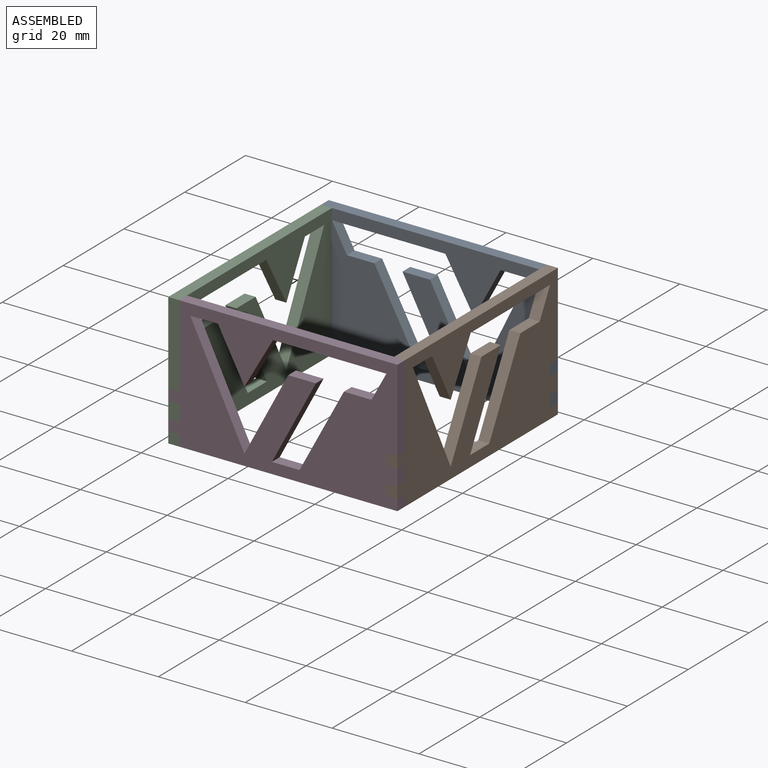
[diagram: assembled view]
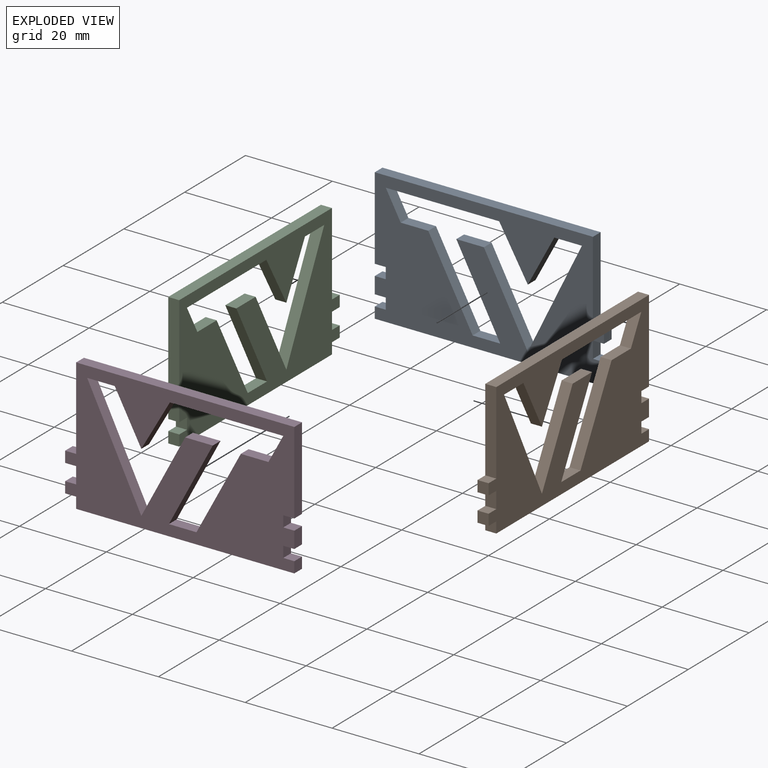
[diagram: exploded view]
GUIDED TOUR — MATED ASSEMBLY (Onshape document 573b88a015af8e62a85d6f1a, AutoMate assembly 573b88a015af8e62a85d6f1a_e017623ce4d224ae7427482c_e7070c4eb9ab015452ffe29b_default)

This assembly has 4 components, labeled P0..P3 below (a component is one placed occurrence of a part; the same part can appear more than once), held together by 3 mates. A mate is a constraint between two components; its type names the relative motion it leaves free:
  PLANAR — leaves sliding in the plane through the listed point (normal = the listed direction) and rotation about that normal free.
Axis/direction vectors are unit vectors and 'through' points are millimeter coordinates, both in the assembly's world frame.

MATES
  1. PLANAR "Planar 2": P0 <-> P1, direction (1.000, 0.000, 0.000) through (-23.96, 34.49, 18.86) mm
  2. PLANAR "Planar 1": P3 <-> P1, direction (0.000, -1.000, 0.000) through (-26.50, -15.75, 18.86) mm
  3. PLANAR "Planar 3": P2 <-> P0, direction (0.000, 1.000, 0.000) through (-74.20, 37.03, 18.86) mm

ASSEMBLY ORDER
  1. P2 — the base component [order verified]
  2. P0 [order verified]
  3. P1 [order verified]
  4. P3 [order verified]
Order-tag legend:
  [order verified] — this step's position reverses a verified removal order: the component was checked to insert without passing through the ones already placed.

Of the 4 components, 4 carry the full construction recipe — the FeatureScript program that regenerates the part's solid from scratch; the rest are supplied as boundary geometry only.
Each toured component is shown spotlighted twice — in the assembled view, then in the exploded view, where a leader line traces a displaced component back to its assembled socket (saturated green if recipe-attached, orange if geometry-only; every other component desaturated gray) — followed by its recipe or geometry summary and the mates that hold it.
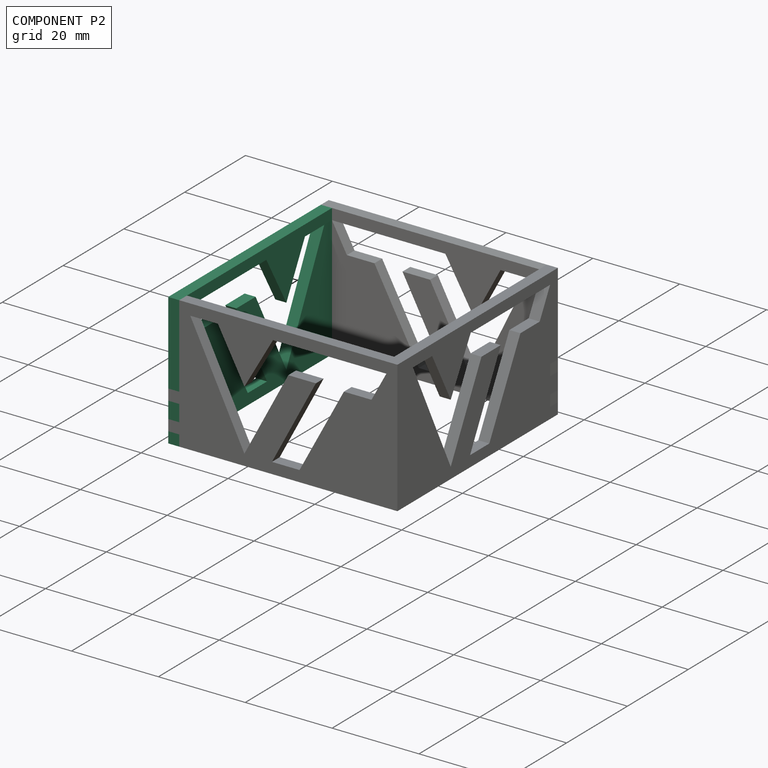
[diagram: component P2 — assembled]
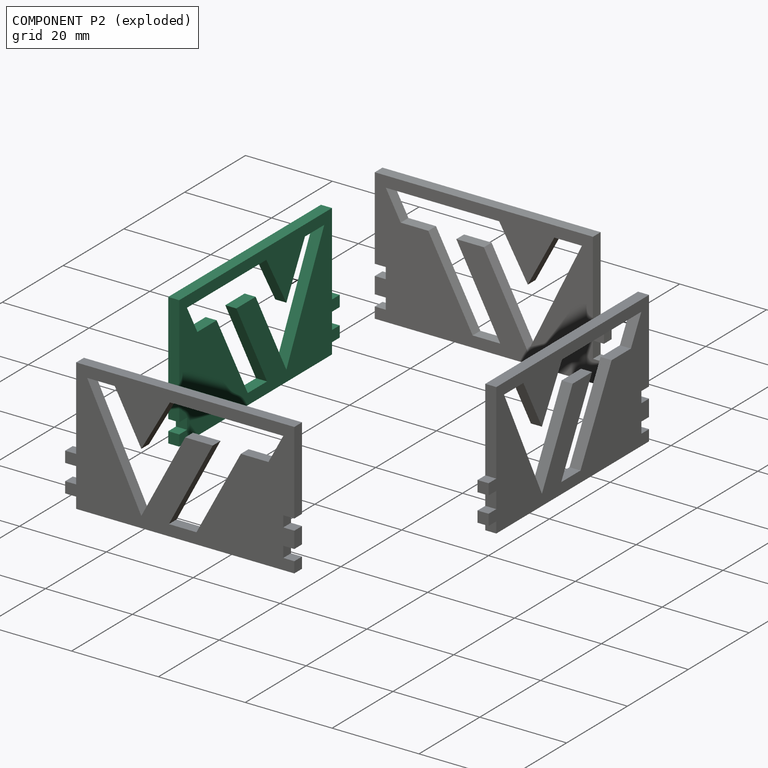
[diagram: component P2 — exploded]
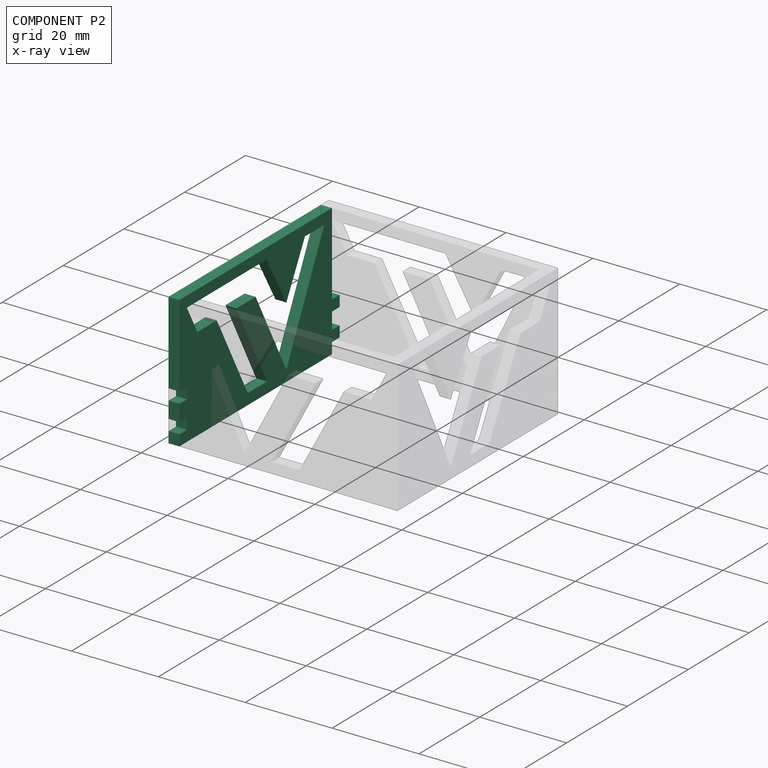
[diagram: component P2 — x-ray view]
COMPONENT P2 — same part as P0 (CADFS 00703544); its construction recipe is shown at P0.
Held by: PLANAR mate "Planar 3" to P0.
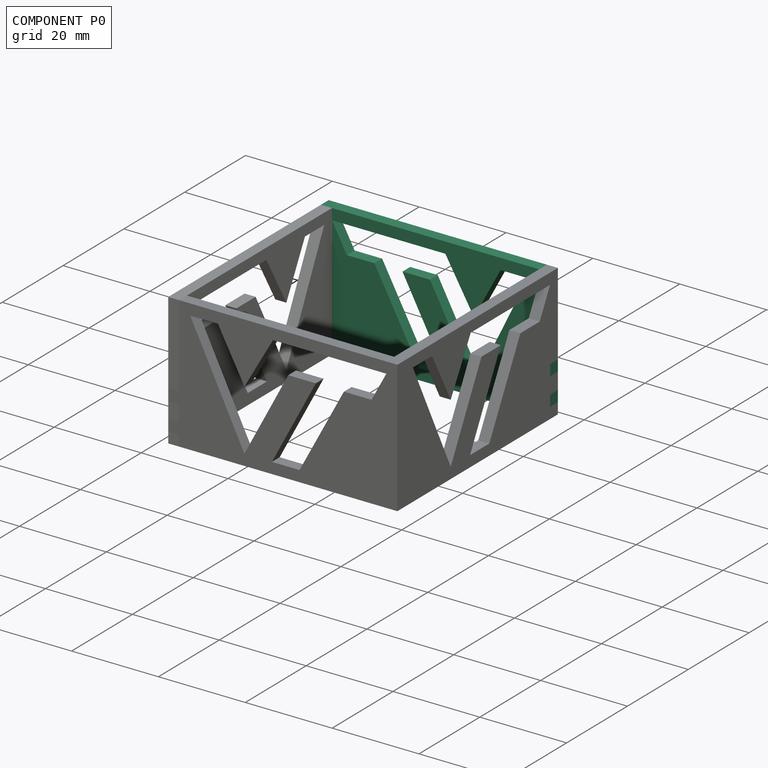
[diagram: component P0 — assembled]
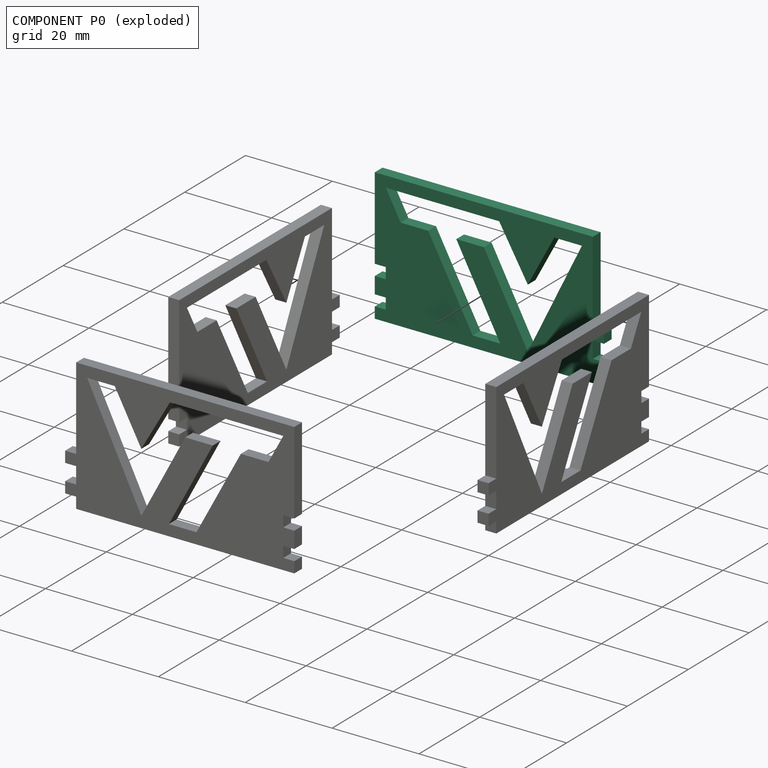
[diagram: component P0 — exploded]
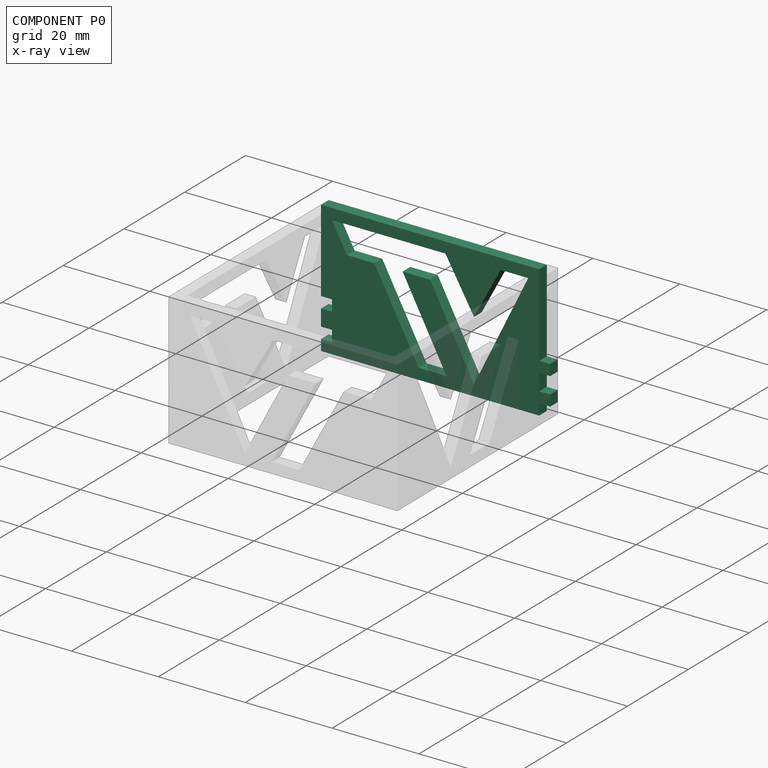
[diagram: component P0 — x-ray view]
COMPONENT P0 — recipe-attached (CADFS 00703544, mesh-verified: the recipe's output STEP matches this component's geometry to below the mesh-comparison resolution (tessellation chordal tolerance ~0.0915 mm)).
Held by: PLANAR mate "Planar 2" to P1; PLANAR mate "Planar 3" to P2.
Construction recipe (FeatureScript — the CAD program that rebuilds this solid; sketch coordinates are in the units given by the * unit suffixes, e.g. mm):

FeatureScript 1511;
import(path : "onshape/std/geometry.fs", version : "1511.0");
import(path : "onshape/std/common.fs", version : "1511.0");
const mm = millimeter;
const VERTEX = EntityType.VERTEX;
const EDGE = EntityType.EDGE;
const FACE = EntityType.FACE;
const BODY = EntityType.BODY;
function v(x, y){return vector(x, y);}
function OD(order){return orderDisambiguation(order);}
function OSD(set){return originalSetDisambiguation(set);}
function TD(topology){return topologyDisambiguation(topology);}
function TDD(query){return trueDependencyDisambiguation(query);}
function sQuery(a, b, c) {return sketchEntityQuery(a, b, c);}

annotation { "Feature Type Name" : "Feature", "Feature Type Description" : "" }
export const myFeature = defineFeature(function(context is Context, id is Id, definition is map)
    precondition{}
    {
        {
            var Q0;
            Q0=qCreatedBy(makeId("Front.planeOp"),FACE);
            var sketch = newSketch(context, id + "F0", { "sketchPlane" : qUnion([Q0])});
            skLineSegment(sketch, "E0", {"start": v(-15.3, 25.4) * mm, "end": v(-2.83, 0) * mm});
            skLineSegment(sketch, "E1", {"start": v(-2.83, 0) * mm, "end": v(7.28, 19.05) * mm});
            skLineSegment(sketch, "E2", {"start": v(7.28, 19.05) * mm, "end": v(13.63, 19.05) * mm});
            skLineSegment(sketch, "E3", {"start": v(13.63, 19.05) * mm, "end": v(3.52, 0) * mm});
            skLineSegment(sketch, "E4", {"start": v(3.52, 0) * mm, "end": v(9.87, 0) * mm});
            skLineSegment(sketch, "E5", {"start": v(9.87, 0) * mm, "end": v(20.09, 19.05) * mm});
            skLineSegment(sketch, "E6", {"start": v(20.09, 19.05) * mm, "end": v(26.44, 19.05) * mm});
            skLineSegment(sketch, "E7", {"start": v(26.44, 19.05) * mm, "end": v(29.87, 25.4) * mm});
            skLineSegment(sketch, "E8", {"start": v(29.87, 25.4) * mm, "end": v(3.76, 25.4) * mm});
            skLineSegment(sketch, "E9", {"start": v(3.76, 25.4) * mm, "end": v(-2.83, 13.97) * mm});
            skLineSegment(sketch, "E10", {"start": v(-2.83, 13.97) * mm, "end": v(-8.94, 25.4) * mm});
            skLineSegment(sketch, "E11", {"start": v(-8.94, 25.4) * mm, "end": v(-15.3, 25.4) * mm});
            skSolve(sketch);
        }
        {
            var Q0;
            Q0=qCreatedBy(makeId("Front.planeOp"),FACE);
            var sketch = newSketch(context, id + "F1", { "sketchPlane" : qUnion([Q0])});
            skLineSegment(sketch, "E12.bottom", {"start": v(-17.83, 27.94) * mm, "end": v(32.4, 27.94) * mm});
            skLineSegment(sketch, "E12.top", {"start": v(-17.83, -2.54) * mm, "end": v(32.4, -2.54) * mm});
            skLineSegment(sketch, "E12.left", {"start": v(-17.83, 27.94) * mm, "end": v(-17.83, -2.54) * mm});
            skLineSegment(sketch, "E12.right", {"start": v(32.4, 27.94) * mm, "end": v(32.4, -2.54) * mm});
            skSolve(sketch);
        }
        {
            var Q0;
            Q0=makeQuery(id+"F1.imprint","IMPRINT",FACE,{"disambiguationData":[TD([[makeQuery(id+"F1.imprint","IMPRINT",EDGE,{"derivedFrom":sQuery(id+"F1.wireOp",EDGE,"E12.bottom")}),-1.0]])]});
            extrude(context, id + "F2", {"entities" : qUnion([Q0]), "oppositeDirection" : true, "depth" : 2.54 * mm, "offsetDistance" : 25.4 * mm});
        }
        {
            var Q0;
            Q0 = qSketchRegion(id + "F0", true);
            extrude(context, id + "F3", {"entities" : qUnion([Q0]), "operationType" : NewBodyOperationType.REMOVE, "endBound" : BoundingType.UP_TO_NEXT, "oppositeDirection" : true, "depth" : 25.4 * mm, "offsetDistance" : 25.4 * mm});
        }
        {
            var Q0;
            Q0=makeQuery(id+"F1.imprint","IMPRINT",FACE,{"disambiguationData":[TD([[makeQuery(id+"F1.imprint","IMPRINT",EDGE,{"derivedFrom":sQuery(id+"F1.wireOp",EDGE,"E12.bottom")}),-1.0]])]});
            var sketch = newSketch(context, id + "F4", { "sketchPlane" : qUnion([Q0])});
            skLineSegment(sketch, "E13.0.0", {"start": v(-17.83, 27.94) * mm, "end": v(-17.83, -2.54) * mm});
            skLineSegment(sketch, "E13.0.1", {"start": v(-17.83, -2.54) * mm, "end": v(32.4, -2.54) * mm});
            skLineSegment(sketch, "E13.0.2", {"start": v(32.4, -2.54) * mm, "end": v(32.4, 27.94) * mm});
            skLineSegment(sketch, "E13.0.3", {"start": v(32.4, 27.94) * mm, "end": v(-17.83, 27.94) * mm});
            skLineSegment(sketch, "E14.bottom", {"start": v(-17.83, -2.54) * mm, "end": v(-15.3, -2.54) * mm});
            skLineSegment(sketch, "E14.top", {"start": v(-17.83, 11.43) * mm, "end": v(-15.3, 11.43) * mm});
            skLineSegment(sketch, "E14.left", {"start": v(-17.83, -2.54) * mm, "end": v(-17.83, 11.43) * mm});
            skLineSegment(sketch, "E14.right", {"start": v(-15.3, -2.54) * mm, "end": v(-15.3, 11.43) * mm});
            skLineSegment(sketch, "E15.bottom", {"start": v(32.4, -2.54) * mm, "end": v(29.87, -2.54) * mm});
            skLineSegment(sketch, "E15.top", {"start": v(32.4, 12.4) * mm, "end": v(29.87, 12.4) * mm});
            skLineSegment(sketch, "E15.left", {"start": v(32.4, -2.54) * mm, "end": v(32.4, 12.4) * mm});
            skLineSegment(sketch, "E15.right", {"start": v(29.87, -2.54) * mm, "end": v(29.87, 12.4) * mm});
            skLineSegment(sketch, "E16.bottom", {"start": v(-17.83, 6.35) * mm, "end": v(-15.3, 6.35) * mm});
            skLineSegment(sketch, "E16.top", {"start": v(-17.83, 8.9) * mm, "end": v(-15.3, 8.9) * mm});
            skLineSegment(sketch, "E16.left", {"start": v(-17.83, 6.35) * mm, "end": v(-17.83, 8.9) * mm});
            skLineSegment(sketch, "E16.right", {"start": v(-15.3, 6.35) * mm, "end": v(-15.3, 8.9) * mm});
            skLineSegment(sketch, "E17.bottom", {"start": v(-17.83, 0) * mm, "end": v(-15.3, 0) * mm});
            skLineSegment(sketch, "E17.top", {"start": v(-17.83, 2.54) * mm, "end": v(-15.3, 2.54) * mm});
            skLineSegment(sketch, "E17.left", {"start": v(-17.83, 0) * mm, "end": v(-17.83, 2.54) * mm});
            skLineSegment(sketch, "E17.right", {"start": v(-15.3, 0) * mm, "end": v(-15.3, 2.54) * mm});
            skLineSegment(sketch, "E18.bottom", {"start": v(29.87, 6.35) * mm, "end": v(32.4, 6.35) * mm});
            skLineSegment(sketch, "E18.top", {"start": v(29.87, 8.9) * mm, "end": v(32.4, 8.9) * mm});
            skLineSegment(sketch, "E18.left", {"start": v(29.87, 6.35) * mm, "end": v(29.87, 8.9) * mm});
            skLineSegment(sketch, "E18.right", {"start": v(32.4, 6.35) * mm, "end": v(32.4, 8.9) * mm});
            skLineSegment(sketch, "E19.bottom", {"start": v(29.87, 0) * mm, "end": v(32.4, 0) * mm});
            skLineSegment(sketch, "E19.top", {"start": v(29.87, 2.54) * mm, "end": v(32.4, 2.54) * mm});
            skLineSegment(sketch, "E19.left", {"start": v(29.87, 0) * mm, "end": v(29.87, 2.54) * mm});
            skLineSegment(sketch, "E19.right", {"start": v(32.4, 0) * mm, "end": v(32.4, 2.54) * mm});
            skSolve(sketch);
        }
        {
            var Q0;
            Q0=makeQuery(id+"F4.imprint","IMPRINT",FACE,{"disambiguationData":[TD([[makeQuery(id+"F4.imprint","IMPRINT",EDGE,{"derivedFrom":sQuery(id+"F4.wireOp",EDGE,"E18.bottom")}),1.0]])]});
            var Q1;
            Q1=makeQuery(id+"F4.imprint","IMPRINT",FACE,{"disambiguationData":[TD([[makeQuery(id+"F4.imprint","IMPRINT",EDGE,{"derivedFrom":sQuery(id+"F4.wireOp",EDGE,"E19.bottom")}),1.0]])]});
            extrude(context, id + "F5", {"entities" : qUnion([Q0, Q1]), "operationType" : NewBodyOperationType.REMOVE, "endBound" : BoundingType.UP_TO_NEXT, "oppositeDirection" : true, "depth" : 25.4 * mm, "offsetDistance" : 25.4 * mm});
        }
        {
            var Q0;
            Q0=makeQuery(id+"F2.opExtrude","SWEPT_FACE",FACE,{"disambiguationData":[OSD([sQuery(id+"F1.wireOp",EDGE,"E12.left")])]});
            var sketch = newSketch(context, id + "F6", { "sketchPlane" : qUnion([Q0])});
            skLineSegment(sketch, "E20.bottom", {"start": v(-2.54, -2.54) * mm, "end": v(0, -2.54) * mm});
            skLineSegment(sketch, "E20.top", {"start": v(-2.54, 11.43) * mm, "end": v(0, 11.43) * mm});
            skLineSegment(sketch, "E20.left", {"start": v(-2.54, -2.54) * mm, "end": v(-2.54, 11.43) * mm});
            skLineSegment(sketch, "E20.right", {"start": v(0, -2.54) * mm, "end": v(0, 11.43) * mm});
            skLineSegment(sketch, "E21.bottom", {"start": v(-2.54, 8.9) * mm, "end": v(0, 8.9) * mm});
            skLineSegment(sketch, "E21.top", {"start": v(-2.54, 6.35) * mm, "end": v(0, 6.35) * mm});
            skLineSegment(sketch, "E21.left", {"start": v(-2.54, 8.9) * mm, "end": v(-2.54, 6.35) * mm});
            skLineSegment(sketch, "E21.right", {"start": v(0, 8.9) * mm, "end": v(0, 6.35) * mm});
            skLineSegment(sketch, "E22.bottom", {"start": v(-2.54, 2.54) * mm, "end": v(0, 2.54) * mm});
            skLineSegment(sketch, "E22.top", {"start": v(-2.54, 0) * mm, "end": v(0, 0) * mm});
            skLineSegment(sketch, "E22.left", {"start": v(-2.54, 2.54) * mm, "end": v(-2.54, 0) * mm});
            skLineSegment(sketch, "E22.right", {"start": v(0, 2.54) * mm, "end": v(0, 0) * mm});
            skSolve(sketch);
        }
        {
            var Q0;
            Q0=makeQuery(id+"F6.imprint","IMPRINT",FACE,{"disambiguationData":[TD([[makeQuery(id+"F6.imprint","IMPRINT",EDGE,{"derivedFrom":sQuery(id+"F6.wireOp",EDGE,"E21.bottom")}),-1.0]])]});
            var Q1;
            Q1=makeQuery(id+"F6.imprint","IMPRINT",FACE,{"disambiguationData":[TD([[makeQuery(id+"F6.imprint","IMPRINT",EDGE,{"derivedFrom":sQuery(id+"F6.wireOp",EDGE,"E22.bottom")}),-1.0]])]});
            extrude(context, id + "F7", {"entities" : qUnion([Q0, Q1]), "operationType" : NewBodyOperationType.ADD, "depth" : 2.54 * mm, "offsetDistance" : 25.4 * mm});
        }
    });
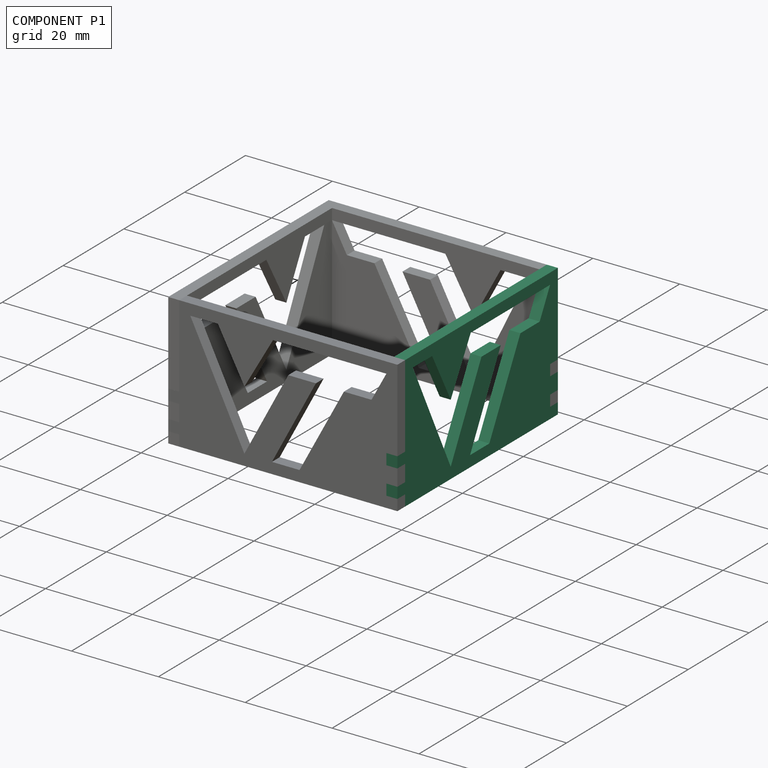
[diagram: component P1 — assembled]
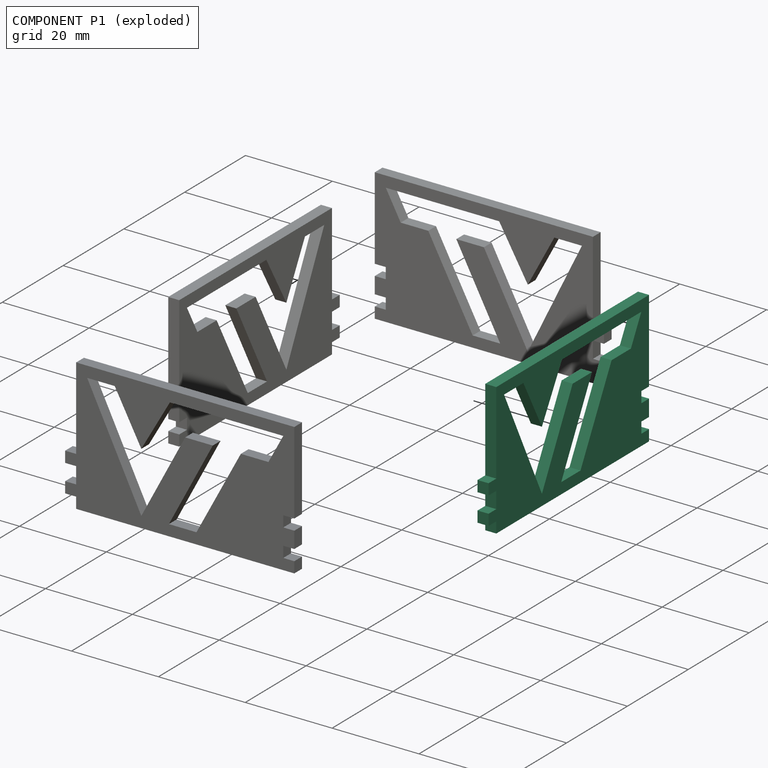
[diagram: component P1 — exploded]
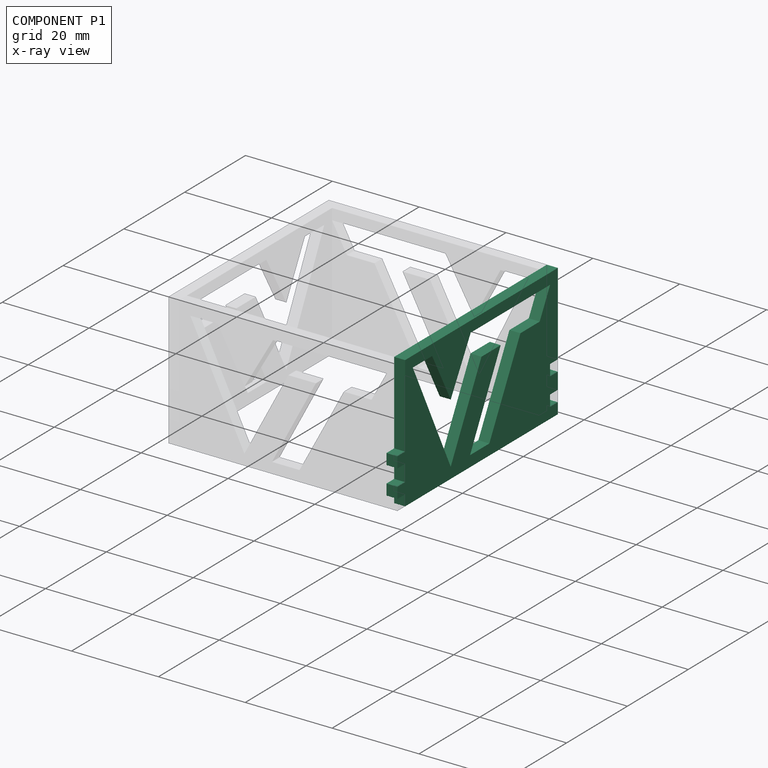
[diagram: component P1 — x-ray view]
COMPONENT P1 — same part as P0 (CADFS 00703544); its construction recipe is shown at P0.
Held by: PLANAR mate "Planar 2" to P0; PLANAR mate "Planar 1" to P3.
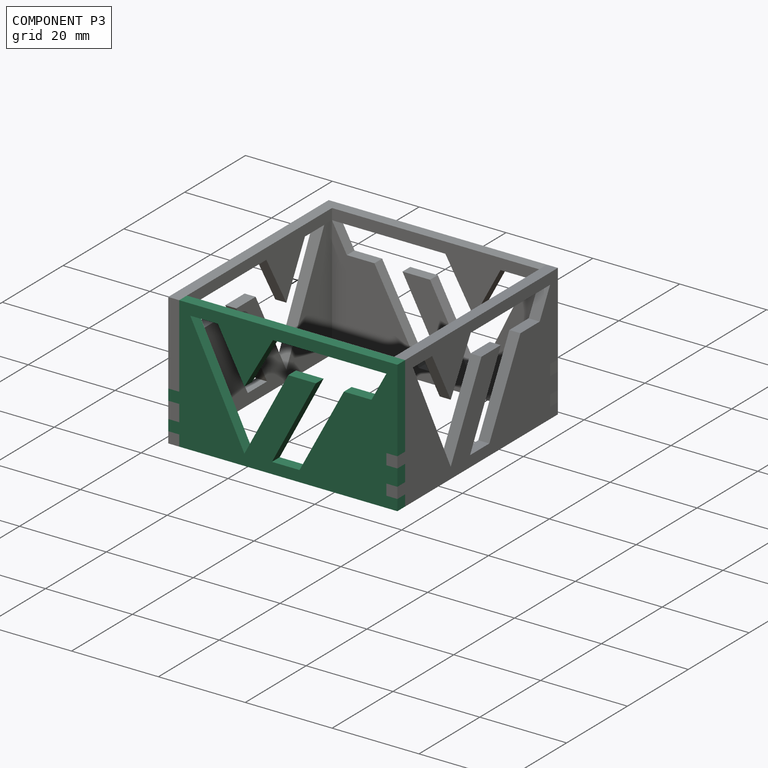
[diagram: component P3 — assembled]
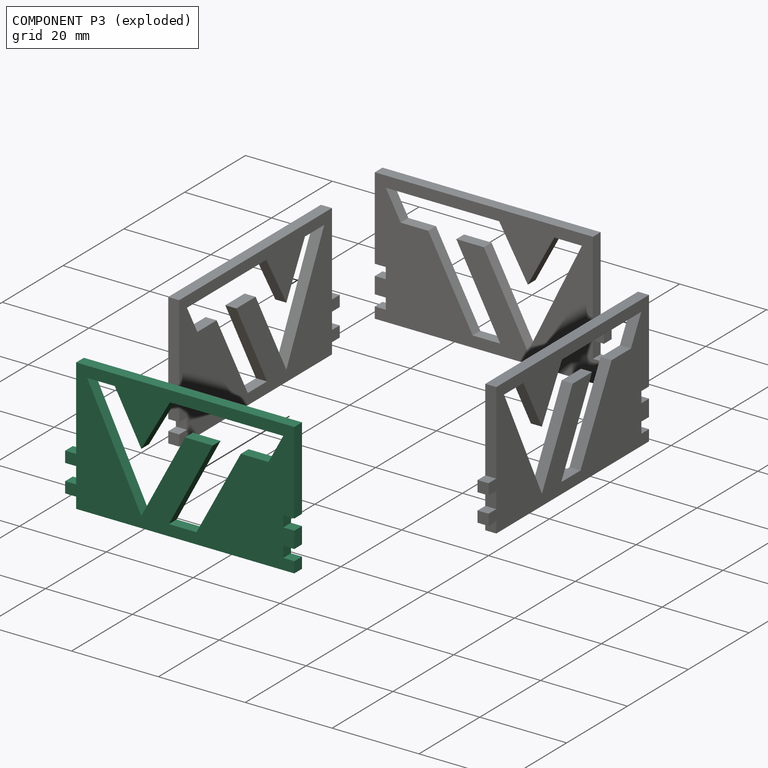
[diagram: component P3 — exploded]
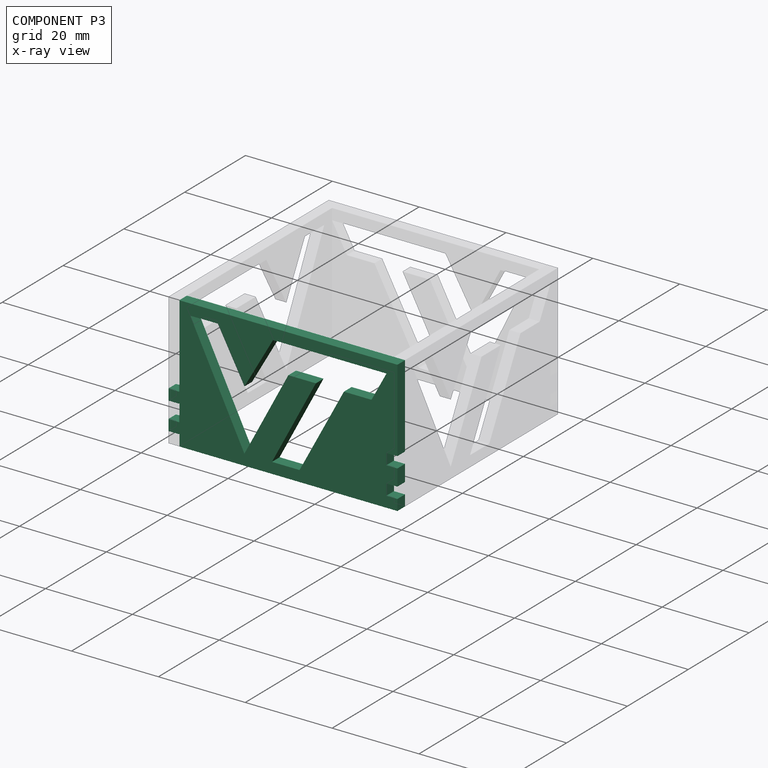
[diagram: component P3 — x-ray view]
COMPONENT P3 — same part as P0 (CADFS 00703544); its construction recipe is shown at P0.
Held by: PLANAR mate "Planar 1" to P1.
PROVENANCE & LICENSES
Assembly (occurrences, transforms, mates, per-part STEP geometry): AutoMate dataset, Zenodo record 7776208, CC0.
Construction recipes: CADFS (HuggingFace VladPyatov/CADFS, CC-BY-4.0, layered over the ABC dataset), FeatureScript reconstruction programs keyed by ABC model id.
Join: ABC meta listings map ABC model id -> Onshape documentId; within a shared document, parts are matched by geometric signature (bounding-box dims + volume at 0.1% relative tolerance, exact B-rep face/solid counts).
Verification: 4 of this assembly's 4 components carry a recipe attachment, and every attachment is mesh-verified: the CADFS STEP and the AutoMate member STEP were compared as meshes in their shared local frame (symmetric sampled-point-to-mesh distance); worst across the 4 attachments: below the mesh-comparison resolution (tessellation chordal tolerance ~0.0915 mm) on a 61 mm part.
Renders: orthographic iso camera (az 35 / el 25); the floor grid conveys scale (grid pitch printed in each image; no ruler). In the exploded view each component is displaced by its stored offset vector: the offsets alone carry the explosion direction (mate normal/axis signs are not orientation cues and do not encode it), and separation distances are assigned per mate-chain, not proportionally to assembly-order depth.
